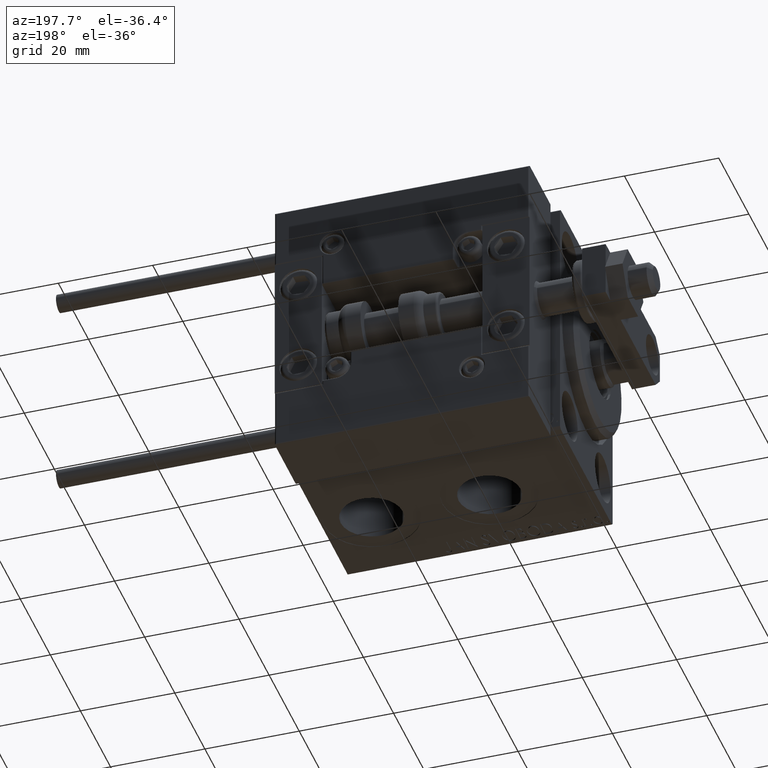
[diagram: clean part render]
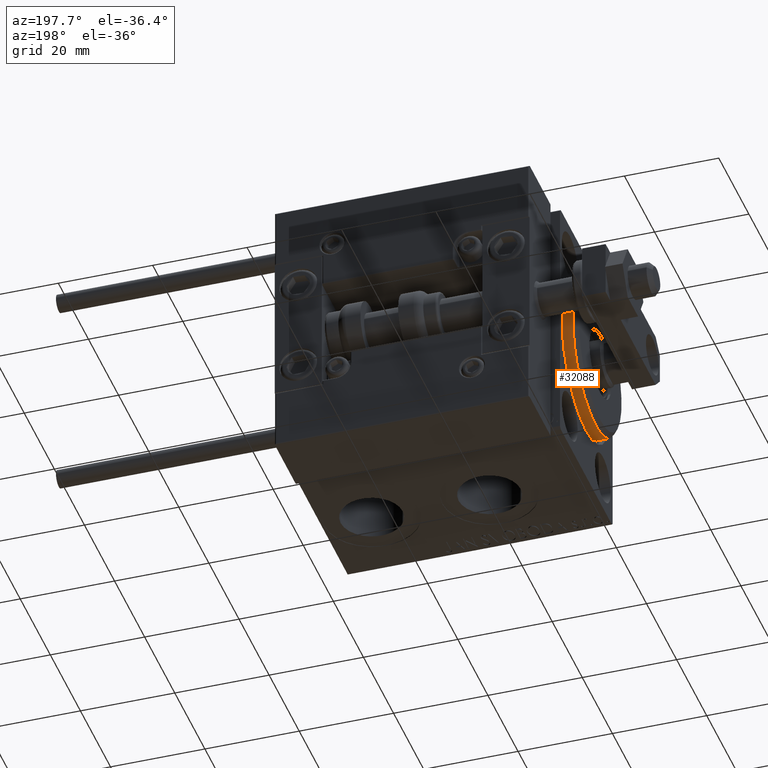
[diagram: same view with one face highlighted and labeled with its STEP entity id]
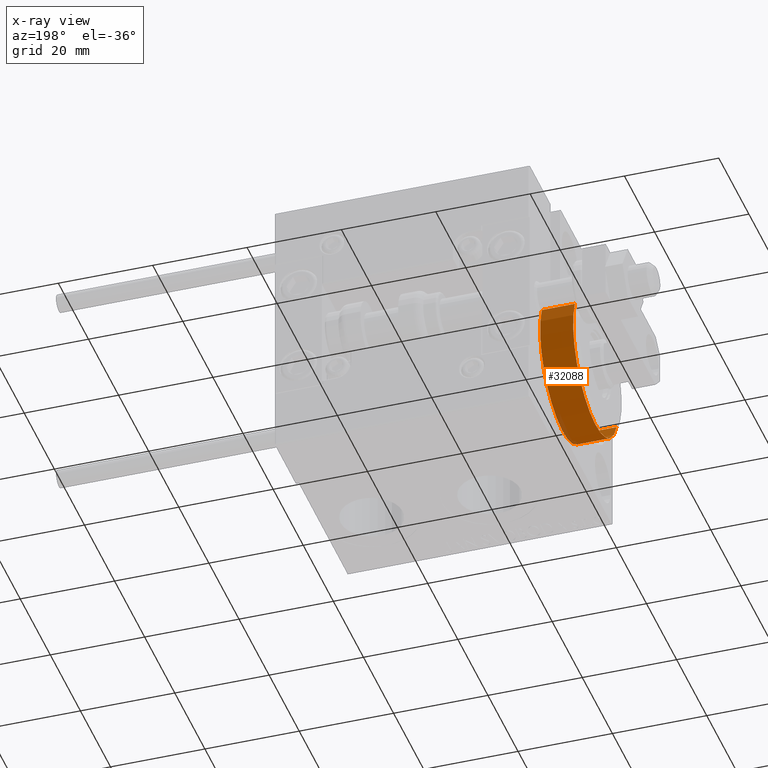
[diagram: x-ray of the same camera — body ghosted, the highlighted face saturated]
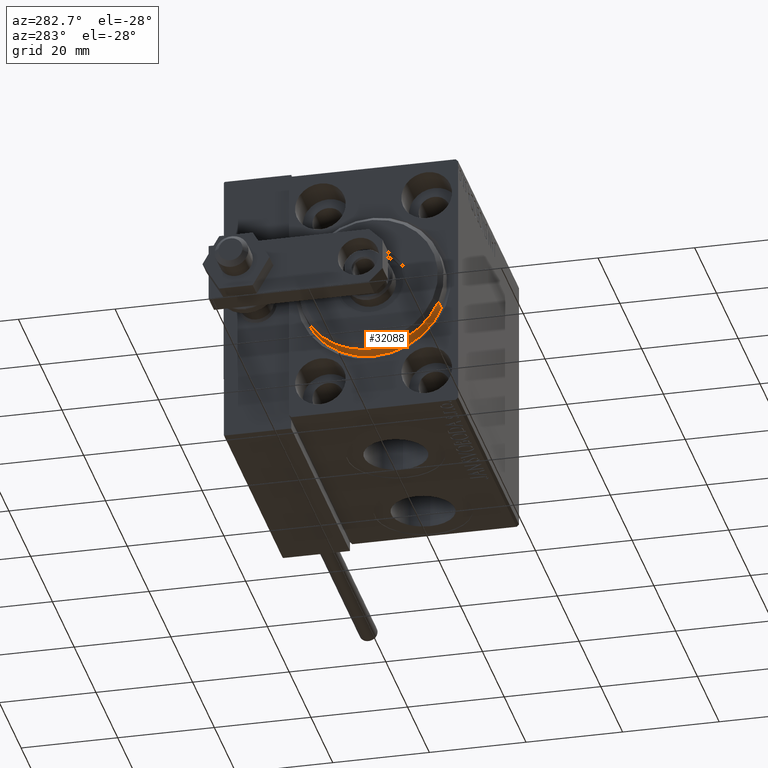
[diagram: same view with one face highlighted and labeled with its STEP entity id]
A machine part, auxiliary view. The second image highlights one B-rep face of the part: STEP entity #32088.
The next image is the same camera in x-ray: the body ghosted, the highlighted face saturated — about 3% of this face is hidden behind the body in this view.
A second angle (auxiliary view) of the same face is appended — the face is thin or edge-on in the first view.
In plain terms, the highlighted cylindrical surface (partial cylindrical patch) has radius 15 mm, axis along (1, 0, 0).
Its self-contained STEP definition (entity closure, byte-faithful):
#3831 = CARTESIAN_POINT ( 'NONE',  ( 3.000000000000000000, 1.836970198721029589E-15, -15.00000000000000000 ) ) ;
#4529 = ORIENTED_EDGE ( 'NONE', *, *, #46617, .F. ) ;
#4949 = EDGE_CURVE ( 'NONE', #23233, #42647, #45740, .T. ) ;
#5090 = ORIENTED_EDGE ( 'NONE', *, *, #4949, .T. ) ;
#5605 = CARTESIAN_POINT ( 'NONE',  ( 3.000000000000000000, 0.000000000000000000, 0.000000000000000000 ) ) ;
#6976 = VERTEX_POINT ( 'NONE', #46354 ) ;
#11566 = VERTEX_POINT ( 'NONE', #21671 ) ;
#13687 = CARTESIAN_POINT ( 'NONE',  ( 1.999999999999995781, 1.836970198721029589E-15, -15.00000000000000000 ) ) ;
#14080 = DIRECTION ( 'NONE',  ( -1.000000000000000000, 0.000000000000000000, 0.000000000000000000 ) ) ;
#14124 = EDGE_LOOP ( 'NONE', ( #5090, #19592, #35035, #4529 ) ) ;
#14344 = CARTESIAN_POINT ( 'NONE',  ( 1.999999999999995781, 0.000000000000000000, 0.000000000000000000 ) ) ;
#15046 = CARTESIAN_POINT ( 'NONE',  ( 1.999999999999995781, 0.000000000000000000, 15.00000000000000000 ) ) ;
#16447 = AXIS2_PLACEMENT_3D ( 'NONE', #5605, #20655, #17580 ) ;
#17175 = CARTESIAN_POINT ( 'NONE',  ( -5.000000000000000000, 0.000000000000000000, 0.000000000000000000 ) ) ;
#17580 = DIRECTION ( 'NONE',  ( 0.000000000000000000, 0.000000000000000000, 1.000000000000000000 ) ) ;
#18161 = DIRECTION ( 'NONE',  ( 0.000000000000000000, 0.000000000000000000, -1.000000000000000000 ) ) ;
#18564 = LINE ( 'NONE', #37389, #47486 ) ;
#18867 = LINE ( 'NONE', #3831, #27529 ) ;
#19376 = DIRECTION ( 'NONE',  ( -1.000000000000000000, -0.000000000000000000, -0.000000000000000000 ) ) ;
#19592 = ORIENTED_EDGE ( 'NONE', *, *, #23216, .T. ) ;
#20655 = DIRECTION ( 'NONE',  ( -1.000000000000000000, -0.000000000000000000, -0.000000000000000000 ) ) ;
#21393 = FACE_OUTER_BOUND ( 'NONE', #14124, .T. ) ;
#21671 = CARTESIAN_POINT ( 'NONE',  ( -5.000000000000000000, 1.836970198721029589E-15, -15.00000000000000000 ) ) ;
#23216 = EDGE_CURVE ( 'NONE', #42647, #11566, #18867, .T. ) ;
#23233 = VERTEX_POINT ( 'NONE', #15046 ) ;
#27529 = VECTOR ( 'NONE', #19376, 1000.000000000000000 ) ;
#32088 = ADVANCED_FACE ( 'NONE', ( #21393 ), #48117, .T. ) ;
#32445 = DIRECTION ( 'NONE',  ( -1.000000000000000000, 0.000000000000000000, 0.000000000000000000 ) ) ;
#35035 = ORIENTED_EDGE ( 'NONE', *, *, #36855, .F. ) ;
#35065 = CIRCLE ( 'NONE', #39142, 15.00000000000000000 ) ;
#36775 = AXIS2_PLACEMENT_3D ( 'NONE', #14344, #14080, #18161 ) ;
#36855 = EDGE_CURVE ( 'NONE', #6976, #11566, #35065, .T. ) ;
#37389 = CARTESIAN_POINT ( 'NONE',  ( 3.000000000000000000, 0.000000000000000000, 15.00000000000000000 ) ) ;
#39142 = AXIS2_PLACEMENT_3D ( 'NONE', #17175, #32445, #44168 ) ;
#42647 = VERTEX_POINT ( 'NONE', #13687 ) ;
#44168 = DIRECTION ( 'NONE',  ( 0.000000000000000000, 0.000000000000000000, 1.000000000000000000 ) ) ;
#45740 = CIRCLE ( 'NONE', #36775, 15.00000000000000000 ) ;
#46354 = CARTESIAN_POINT ( 'NONE',  ( -5.000000000000000000, 0.000000000000000000, 15.00000000000000000 ) ) ;
#46617 = EDGE_CURVE ( 'NONE', #23233, #6976, #18564, .T. ) ;
#47486 = VECTOR ( 'NONE', #49098, 1000.000000000000000 ) ;
#48117 = CYLINDRICAL_SURFACE ( 'NONE', #16447, 15.00000000000000000 ) ;
#49098 = DIRECTION ( 'NONE',  ( -1.000000000000000000, -0.000000000000000000, -0.000000000000000000 ) ) ;